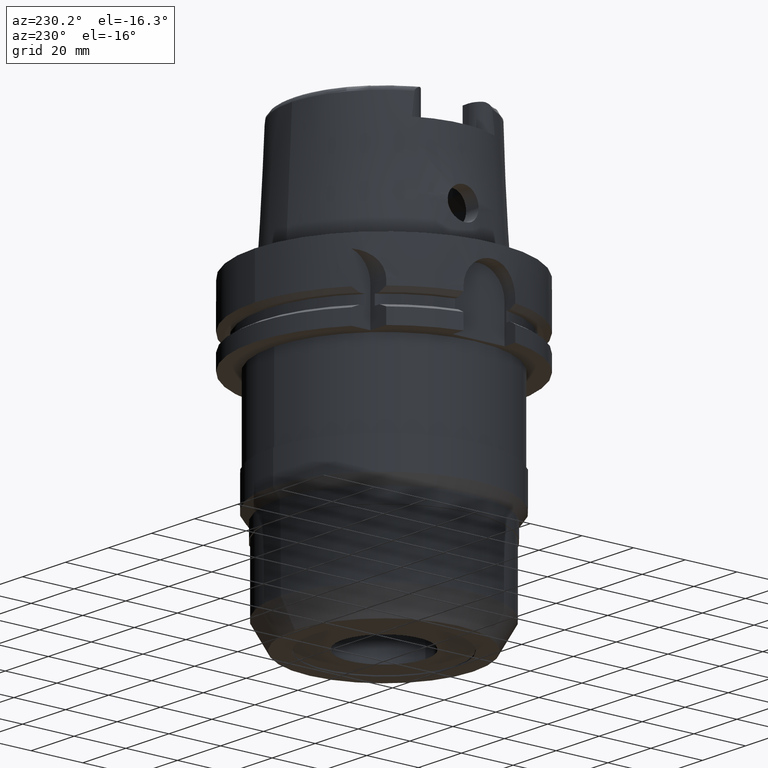
[diagram: clean part render]
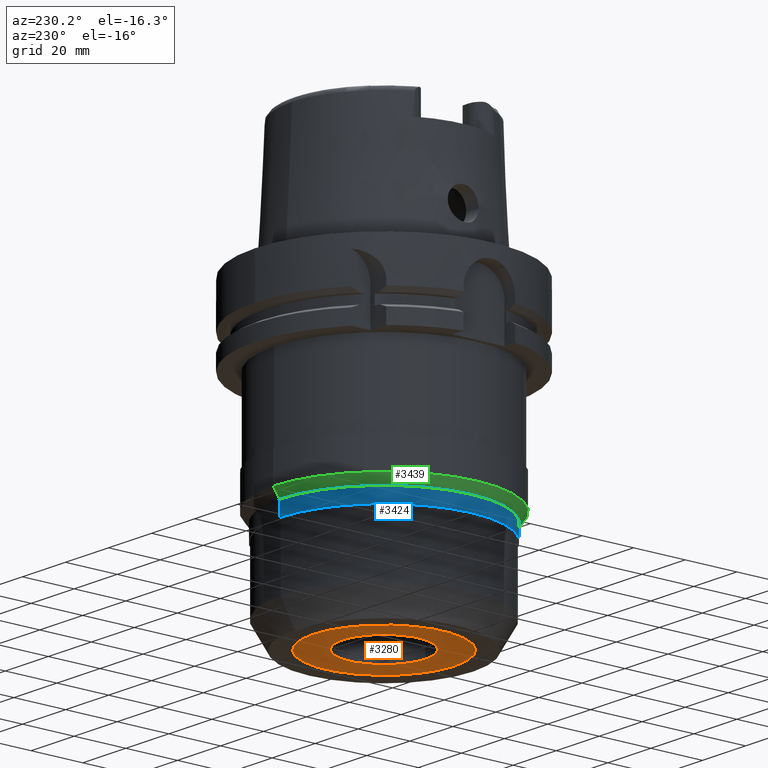
[diagram: same view with three faces highlighted in distinct colors, each labeled with its STEP entity id]
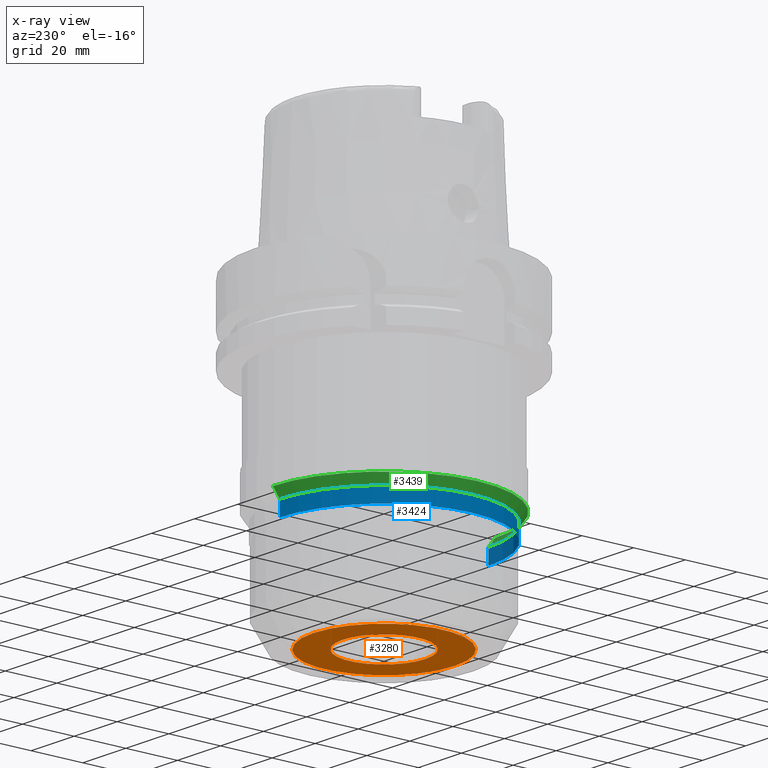
[diagram: x-ray of the same camera — body ghosted, the three highlighted faces saturated]
A machine part, auxiliary view with three faces highlighted in distinct colors.
The next image is the same camera in x-ray (body ghosted, the three faces saturated) — at least one of them is partly hidden behind the body in this view.
Their STEP definitions:

[orange] entity #3280 — the highlighted planar face has unit normal (0, 0, 1).
#971=CARTESIAN_POINT('',(0.E0,0.E0,-1.15E2));
#972=DIRECTION('',(0.E0,0.E0,1.E0));
#973=DIRECTION('',(0.E0,-1.E0,0.E0));
#974=AXIS2_PLACEMENT_3D('',#971,#972,#973);
#979=CARTESIAN_POINT('',(0.E0,0.E0,-1.15E2));
#980=DIRECTION('',(0.E0,0.E0,1.E0));
#981=DIRECTION('',(0.E0,1.E0,0.E0));
#982=AXIS2_PLACEMENT_3D('',#979,#980,#981);
#987=CARTESIAN_POINT('',(0.E0,0.E0,-1.15E2));
#988=DIRECTION('',(0.E0,0.E0,-1.E0));
#989=DIRECTION('',(0.E0,-1.E0,0.E0));
#990=AXIS2_PLACEMENT_3D('',#987,#988,#989);
#995=CARTESIAN_POINT('',(0.E0,0.E0,-1.15E2));
#996=DIRECTION('',(0.E0,0.E0,-1.E0));
#997=DIRECTION('',(0.E0,1.E0,0.E0));
#998=AXIS2_PLACEMENT_3D('',#995,#996,#997);
#2406=CARTESIAN_POINT('',(0.E0,1.6E1,-1.15E2));
#2407=VERTEX_POINT('',#2406);
#2408=CARTESIAN_POINT('',(0.E0,-1.6E1,-1.15E2));
#2409=VERTEX_POINT('',#2408);
#2410=CARTESIAN_POINT('',(0.E0,-2.735E1,-1.15E2));
#2411=CARTESIAN_POINT('',(0.E0,2.735E1,-1.15E2));
#2412=VERTEX_POINT('',#2410);
#2413=VERTEX_POINT('',#2411);
#3265=CARTESIAN_POINT('',(0.E0,0.E0,-1.15E2));
#3266=DIRECTION('',(0.E0,0.E0,1.E0));
#3267=DIRECTION('',(0.E0,1.E0,0.E0));
#3268=AXIS2_PLACEMENT_3D('',#3265,#3266,#3267);
#3269=PLANE('',#3268);
#3271=ORIENTED_EDGE('',*,*,#3270,.T.);
#3273=ORIENTED_EDGE('',*,*,#3272,.T.);
#3274=EDGE_LOOP('',(#3271,#3273));
#3275=FACE_OUTER_BOUND('',#3274,.F.);
#3276=ORIENTED_EDGE('',*,*,#3258,.T.);
#3277=ORIENTED_EDGE('',*,*,#3247,.T.);
#3278=EDGE_LOOP('',(#3276,#3277));
#3279=FACE_BOUND('',#3278,.F.);
#975=CIRCLE('',#974,2.735E1);
#983=CIRCLE('',#982,2.735E1);
#991=CIRCLE('',#990,1.6E1);
#999=CIRCLE('',#998,1.6E1);
#3247=EDGE_CURVE('',#2407,#2409,#999,.T.);
#3258=EDGE_CURVE('',#2409,#2407,#991,.T.);
#3270=EDGE_CURVE('',#2412,#2413,#975,.T.);
#3272=EDGE_CURVE('',#2413,#2412,#983,.T.);
#3280=ADVANCED_FACE('',(#3275,#3279),#3269,.F.);

[blue] entity #3424 — the highlighted cylindrical surface (partial cylindrical patch) has radius 40.35 mm, axis along (0, 0, 1).
#1101=CARTESIAN_POINT('',(0.E0,0.E0,-8.16E1));
#1102=DIRECTION('',(0.E0,0.E0,1.E0));
#1103=DIRECTION('',(0.E0,1.E0,0.E0));
#1104=AXIS2_PLACEMENT_3D('',#1101,#1102,#1103);
#1125=DIRECTION('',(0.E0,-2.988031265328E-13,-1.E0));
#1126=VECTOR('',#1125,5.683331222709E0);
#1127=CARTESIAN_POINT('',(0.E0,4.035E1,-7.591666877729E1));
#1128=LINE('',#1127,#1126);
#1132=DIRECTION('',(0.E0,2.988031265328E-13,-1.E0));
#1133=VECTOR('',#1132,5.683331222709E0);
#1134=CARTESIAN_POINT('',(0.E0,-4.035E1,-7.591666877729E1));
#1135=LINE('',#1134,#1133);
#1154=CARTESIAN_POINT('',(0.E0,0.E0,-7.591666877729E1));
#1155=DIRECTION('',(0.E0,0.E0,-1.E0));
#1156=DIRECTION('',(0.E0,-1.E0,0.E0));
#1157=AXIS2_PLACEMENT_3D('',#1154,#1155,#1156);
#2430=CARTESIAN_POINT('',(0.E0,-4.035E1,-8.16E1));
#2431=CARTESIAN_POINT('',(0.E0,4.035E1,-8.16E1));
#2432=VERTEX_POINT('',#2430);
#2433=VERTEX_POINT('',#2431);
#2434=CARTESIAN_POINT('',(0.E0,4.035E1,-7.591666877729E1));
#2435=VERTEX_POINT('',#2434);
#2436=CARTESIAN_POINT('',(0.E0,-4.035E1,-7.591666877729E1));
#2437=VERTEX_POINT('',#2436);
#3412=CARTESIAN_POINT('',(0.E0,0.E0,-1.2367E2));
#3413=DIRECTION('',(0.E0,0.E0,1.E0));
#3414=DIRECTION('',(0.E0,1.E0,0.E0));
#3415=AXIS2_PLACEMENT_3D('',#3412,#3413,#3414);
#3416=CYLINDRICAL_SURFACE('',#3415,4.035E1);
#3417=ORIENTED_EDGE('',*,*,#3402,.F.);
#3419=ORIENTED_EDGE('',*,*,#3418,.F.);
#3420=ORIENTED_EDGE('',*,*,#3405,.T.);
#3421=ORIENTED_EDGE('',*,*,#3388,.F.);
#3422=EDGE_LOOP('',(#3417,#3419,#3420,#3421));
#3423=FACE_OUTER_BOUND('',#3422,.F.);
#1105=CIRCLE('',#1104,4.035E1);
#1158=CIRCLE('',#1157,4.035E1);
#3388=EDGE_CURVE('',#2433,#2432,#1105,.T.);
#3402=EDGE_CURVE('',#2435,#2433,#1128,.T.);
#3405=EDGE_CURVE('',#2437,#2432,#1135,.T.);
#3418=EDGE_CURVE('',#2437,#2435,#1158,.T.);
#3424=ADVANCED_FACE('',(#3423),#3416,.T.);

[green] entity #3439 — the highlighted conical surface has half-angle 37 deg.
#1139=CARTESIAN_POINT('',(0.E0,0.E0,-7.24E1));
#1140=DIRECTION('',(0.E0,0.E0,1.E0));
#1141=DIRECTION('',(0.E0,1.E0,0.E0));
#1142=AXIS2_PLACEMENT_3D('',#1139,#1140,#1141);
#1147=DIRECTION('',(0.E0,6.018150231523E-1,-7.986355100471E-1));
#1148=VECTOR('',#1147,4.403346373971E0);
#1149=CARTESIAN_POINT('',(0.E0,-4.3E1,-7.24E1));
#1150=LINE('',#1149,#1148);
#1154=CARTESIAN_POINT('',(0.E0,0.E0,-7.591666877729E1));
#1155=DIRECTION('',(0.E0,0.E0,-1.E0));
#1156=DIRECTION('',(0.E0,-1.E0,0.E0));
#1157=AXIS2_PLACEMENT_3D('',#1154,#1155,#1156);
#1162=DIRECTION('',(0.E0,-6.018150231523E-1,-7.986355100471E-1));
#1163=VECTOR('',#1162,4.403346373971E0);
#1164=CARTESIAN_POINT('',(0.E0,4.3E1,-7.24E1));
#1165=LINE('',#1164,#1163);
#2434=CARTESIAN_POINT('',(0.E0,4.035E1,-7.591666877729E1));
#2435=VERTEX_POINT('',#2434);
#2436=CARTESIAN_POINT('',(0.E0,-4.035E1,-7.591666877729E1));
#2437=VERTEX_POINT('',#2436);
#2438=CARTESIAN_POINT('',(0.E0,4.3E1,-7.24E1));
#2439=VERTEX_POINT('',#2438);
#2440=CARTESIAN_POINT('',(0.E0,-4.3E1,-7.24E1));
#2441=VERTEX_POINT('',#2440);
#3425=CARTESIAN_POINT('',(0.E0,0.E0,-7.415833438865E1));
#3426=DIRECTION('',(0.E0,0.E0,1.E0));
#3427=DIRECTION('',(0.E0,1.E0,0.E0));
#3428=AXIS2_PLACEMENT_3D('',#3425,#3426,#3427);
#3429=CONICAL_SURFACE('',#3428,4.1675E1,3.7E1);
#3431=ORIENTED_EDGE('',*,*,#3430,.F.);
#3433=ORIENTED_EDGE('',*,*,#3432,.T.);
#3435=ORIENTED_EDGE('',*,*,#3434,.T.);
#3436=ORIENTED_EDGE('',*,*,#3418,.T.);
#3437=EDGE_LOOP('',(#3431,#3433,#3435,#3436));
#3438=FACE_OUTER_BOUND('',#3437,.F.);
#1143=CIRCLE('',#1142,4.3E1);
#1158=CIRCLE('',#1157,4.035E1);
#3418=EDGE_CURVE('',#2437,#2435,#1158,.T.);
#3430=EDGE_CURVE('',#2439,#2435,#1165,.T.);
#3432=EDGE_CURVE('',#2439,#2441,#1143,.T.);
#3434=EDGE_CURVE('',#2441,#2437,#1150,.T.);
#3439=ADVANCED_FACE('',(#3438),#3429,.T.);